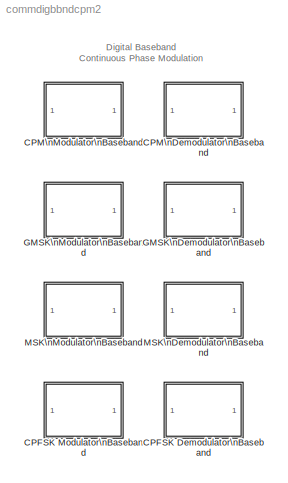
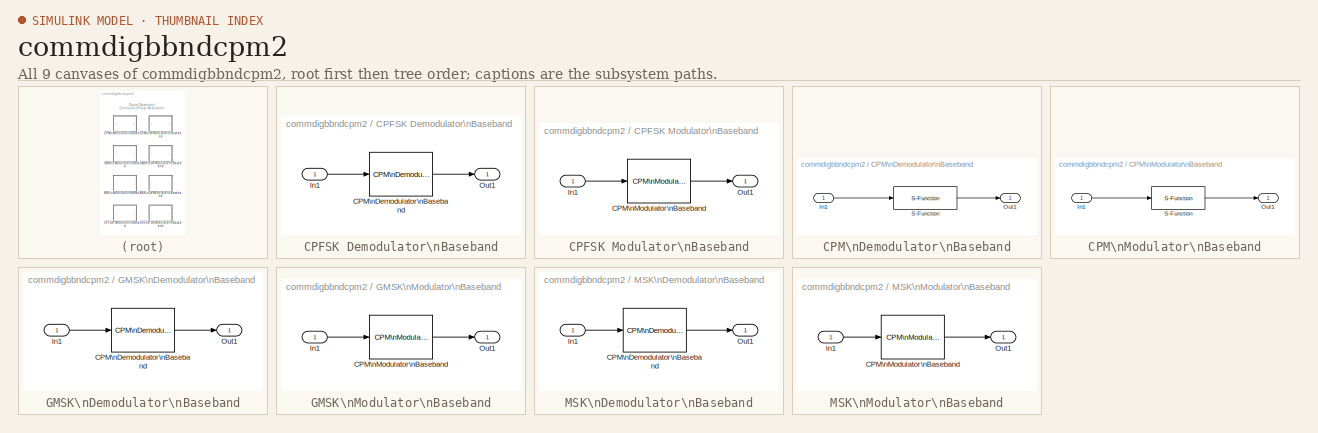
[diagram: thumbnail index - all 9 canvases of the model, root first then tree order]
MODEL commdigbbndcpm2
KIND library
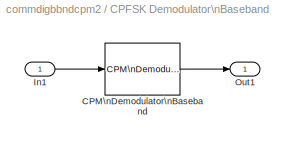
BLOCK [SubSystem] CPFSK Demodulator\nBaseband
  ErrorFcn = commblkcpfskdemod
  MaskCallbackString = |commblkcpfskdemod(gcb,'cbOutputType');|||||
  MaskDescription = Demodulate the CPFSK modulated input signal using the Viterbi algorithm. Traceback length is the number of trellis branches that the algorithm uses to construct each traceback path.\n\nFor sample-based input, the input must be a scalar. For frame-based input, the input must be a column vector.\n\nThe output can be either bits or integers. In case of bit output, the output width is an integer multi...<+376ch>
  MaskDisplay = plot(0,0,100,100,[5+1.5*[[0:.8:10] [10:1.6:20] [20:.8:30]] 50 50 50 50+15*[0 1 1 2 2 3]],[85+10*[sin([0:.8:10]*pi*2/5) sin([10:1.6:20]*pi/5) sin([20:.8:30]*pi*2/5)] 85 99 75 85+8*[1 1 -1 -1 1 1]]);\ntext(50,50,'CPFSK','horiz','center','verti','middle');
  MaskEnableString = on,on,off,on,on,on,on
  MaskHelp = helpview(commbhelp)
  MaskIconFrame = on
  MaskIconOpaque = on
  MaskIconRotate = port
  MaskIconUnits = autoscale
  MaskInitialization = [eStr,params]=commblkcpfskdemod(gcb, 'init');\nif(eStr.ecode==1)\n    error(eStr.emsg);\nelseif(eStr.ecode==2)\n    warning(eStr.emsg);\nend;\n
  MaskPromptString = M-ary number:|Output type:|Symbol set ordering:|Modulation index:|Phase offset (rad):|Samples per symbol:|Traceback length:
  MaskSelfModifiable = on
  MaskStyleString = edit,popup(Bit|Integer),popup(Binary|Gray),edit,edit,edit,edit
  MaskTabNameString = ,,,,,,
  MaskToolTipString = on,on,on,on,on,on,on
  MaskTunableValueString = on,on,on,on,on,on,on
  MaskType = CPFSK Demodulator Baseband
  MaskValueString = 4|Integer|Binary|.5|0|8|16
  MaskVarAliasString = ,,,,,,
  MaskVariables = Mnum=@1;outputType=@2;mappingType=@3;modIdx=@4;phaseOffset=@5;samplesPerSymbol=@6;traceBack=@7;
  MaskVisibilityString = on,on,on,on,on,on,on
  MinAlgLoopOccurrences = off
  Ports = [1, 1]
  PropExecContextAcrossSSBoundary = on
  RTWSystemCode = Auto
  TreatAsAtomicUnit = off
BLOCK [Reference] CPFSK Demodulator\nBaseband/CPM\nDemodulator\nBaseband  REF=commdigbbndcpm2/CPM\nDemodulator\nBaseband
  BT = .3
  Mnum = Mnum
  Ports = [1, 1]
  ShowPortLabels = on
  SourceBlock = commdigbbndcpm2/CPM\nDemodulator\nBaseband
  SourceType = CPM Demodulator Baseband
  mainLobePulseLength = 1
  mappingType = Binary
  modIdx = modIdx
  outputType = Integer
  phaseOffset = phaseOffset
  preHistory = 1
  pulseLength = 1
  pulseShape = Rectangular
  rollOff = 0.2
  samplesPerSymbol = samplesPerSymbol
  traceBack = traceBack
BLOCK [Inport] CPFSK Demodulator\nBaseband/In1
  IconDisplay = Port number
  LatchInput = off
BLOCK [Outport] CPFSK Demodulator\nBaseband/Out1
  BusOutputAsStruct = off
  IconDisplay = Port number
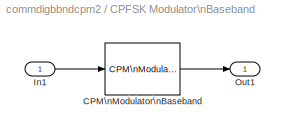
BLOCK [SubSystem] CPFSK Modulator\nBaseband
  ErrorFcn = commblkcpfskmod
  MaskCallbackString = |commblkcpfskmod(gcb,'cbInputType');||||
  MaskDescription = Modulate the input signal using the continuous phase frequency shift keying method.\n\nThe input can be either bits or integers. In case of sample-based bit input, the input width must equal the number of bits per symbol. In case of frame-based bit input, the input width must be an integer multiple of the number of bits per symbol. The bits can be either binary-mapped or Gray-mapped into symbols.\...<+392ch>
  MaskDisplay = plot(0,0,100,100,[5+15*[0 1 1 2 2 3] 50 50 50 50+1.5*[[0:.8:10] [10:1.6:20] [20:.8:30]]],[85+8*[1 1 -1 -1 1 1] 85 99 75 85+10*[sin([0:.8:10]*pi*2/5) sin([10:1.6:20]*pi/5) sin([20:.8:30]*pi*2/5)]]);\ntext(50,50,'CPFSK','horiz','center','verti','middle');
  MaskEnableString = on,on,off,on,on,on
  MaskHelp = helpview(commbhelp)
  MaskIconFrame = on
  MaskIconOpaque = on
  MaskIconRotate = port
  MaskIconUnits = autoscale
  MaskInitialization = [eStr,params]=commblkcpfskmod(gcb, 'init');\nif(eStr.ecode==1)\n    error(eStr.emsg);\nelseif(eStr.ecode==2)\n    warning(eStr.emsg);\nend;\n
  MaskPromptString = M-ary number:|Input type:|Symbol set ordering:|Modulation index:|Phase offset (rad):|Samples per symbol:
  MaskSelfModifiable = on
  MaskStyleString = edit,popup(Bit|Integer),popup(Binary|Gray),edit,edit,edit
  MaskTabNameString = ,,,,,
  MaskToolTipString = on,on,on,on,on,on
  MaskTunableValueString = on,on,on,on,on,on
  MaskType = CPFSK Modulator Baseband
  MaskValueString = 4|Integer|Binary|.5|0|8
  MaskVarAliasString = ,,,,,
  MaskVariables = Mnum=@1;inputType=@2;mappingType=@3;modIdx=@4;phaseOffset=@5;samplesPerSymbol=@6;
  MaskVisibilityString = on,on,on,on,on,on
  MinAlgLoopOccurrences = off
  Ports = [1, 1]
  PropExecContextAcrossSSBoundary = on
  RTWSystemCode = Auto
  TreatAsAtomicUnit = off
BLOCK [Reference] CPFSK Modulator\nBaseband/CPM\nModulator\nBaseband  REF=commdigbbndcpm2/CPM\nModulator\nBaseband
  BT = 0.3
  Mnum = Mnum
  Ports = [1, 1]
  ShowPortLabels = on
  SourceBlock = commdigbbndcpm2/CPM\nModulator\nBaseband
  SourceType = CPM Modulator Baseband
  inputType = Integer
  mainLobePulseLength = 0.2
  mappingType = Binary
  modIdx = modIdx
  phaseOffset = 0
  preHistory = 1
  pulseLength = 1
  pulseShape = Rectangular
  rollOff = 0.2
  samplesPerSymbol = samplesPerSymbol
BLOCK [Inport] CPFSK Modulator\nBaseband/In1
  IconDisplay = Port number
  LatchInput = off
BLOCK [Outport] CPFSK Modulator\nBaseband/Out1
  BusOutputAsStruct = off
  IconDisplay = Port number
BLOCK [SubSystem] CPM\nDemodulator\nBaseband
  ErrorFcn = commblkcpmdemod
  MaskCallbackString = |commblkcpmdemod(gcb,'cbOutputType');|||commblkcpmdemod(gcb,'cbPulseShape');||||||||
  MaskDescription = Demodulate the CPM modulated input signal using the Viterbi algorithm. Traceback length is the number of trellis branches that the algorithm uses to construct each traceback path.\n\nFor sample-based input, the input must be a scalar. For frame-based input, the input must be a column vector.\n\nThe output can be either bits or integers. In case of bit output, the output width is an integer multipl...<+374ch>
  MaskDisplay = plot(0,0,100,100,[5+1.5*[[0:.8:10] [10:1.6:20] [20:.8:30]] 50 50 50 50+15*[0 1 1 2 2 3]],[85+10*[sin([0:.8:10]*pi*2/5) sin([10:1.6:20]*pi/5) sin([20:.8:30]*pi*2/5)] 85 99 75 85+8*[1 1 -1 -1 1 1]]);\ntext(50,50,'CPM','horiz','center','verti','middle');
  MaskEnableString = on,on,off,on,on,on,on,on,on,on,on,on,on
  MaskHelp = helpview(commbhelp)
  MaskIconFrame = on
  MaskIconOpaque = on
  MaskIconRotate = port
  MaskIconUnits = autoscale
  MaskInitialization = [eStr,params]=commblkcpmdemod(gcb, 'init');\nif(eStr.ecode==1)\n    error(eStr.emsg);\nelseif(eStr.ecode==2)\n    warning(eStr.emsg);\nend;\n
  MaskPromptString = M-ary number:|Output type:|Symbol set ordering:|Modulation index:|Frequency pulse shape:|BT product:|Main lobe pulse duration (symbol intervals):|Rolloff:|Pulse length (symbol intervals):|Symbol prehistory:|Phase offset (rad):|Samples per symbol:|Traceback length:
  MaskSelfModifiable = on
  MaskStyleString = edit,popup(Bit|Integer),popup(Binary|Gray),edit,popup(Rectangular|Raised Cosine|Spectral Raised Cosine|Gaussian|Tamed FM),edit,edit,edit,edit,edit,edit,edit,edit
  MaskTabNameString = ,,,,,,,,,,,,
  MaskToolTipString = on,on,on,on,on,on,on,on,on,on,on,on,on
  MaskTunableValueString = on,on,on,on,on,on,on,on,on,on,on,on,on
  MaskType = CPM Demodulator Baseband
  MaskValueString = 4|Integer|Binary|0.5|Rectangular|0.3|1|0.2|1|1|0|8|16
  MaskVarAliasString = ,,,,,,,,,,,,
  MaskVariables = Mnum=@1;outputType=@2;mappingType=@3;modIdx=@4;pulseShape=@5;BT=@6;mainLobePulseLength=@7;rollOff=@8;pulseLength=@9;preHistory=@10;phaseOffset=@11;samplesPerSymbol=@12;traceBack=@13;
  MaskVisibilityString = on,on,on,on,on,off,off,off,on,on,on,on,on
  MinAlgLoopOccurrences = off
  Ports = [1, 1]
  PropExecContextAcrossSSBoundary = on
  RTWSystemCode = Auto
  TreatAsAtomicUnit = off
BLOCK [Inport] CPM\nDemodulator\nBaseband/In1
  IconDisplay = Port number
  LatchInput = off
BLOCK [Outport] CPM\nDemodulator\nBaseband/Out1
  BusOutputAsStruct = off
  IconDisplay = Port number
BLOCK [S-Function] CPM\nDemodulator\nBaseband/S-Function
  FunctionName = scomcpmdemod
  MaskIconFrame = on
  MaskIconOpaque = on
  MaskIconRotate = none
  MaskIconUnits = autoscale
  Parameters = Mnum,outputType,mappingType,modIdx,pulseShape,BT,mainLobePulseLength,rollOff,pulseLength,phaseOffset,samplesPerSymbol, params.gMod,preHistory,0,traceBack,params.m,params.p
  Ports = [1, 1]
  SFunctionModules = buff cpmmodulation trellisdecode phasetrellis
BLOCK [SubSystem] CPM\nModulator\nBaseband
  ErrorFcn = commblkcpmmod
  MaskCallbackString = |commblkcpmmod(gcb,'cbInputType');|||commblkcpmmod(gcb,'cbPulseShape');|||||||
  MaskDescription = Output the complex envelope representation of the selected continuous phase modulation.\n\nThe input can be either bits or integers. In case of sample-based bit input, the input width must equal the number of bits per symbol. In case of frame-based bit input, the input width must be an integer multiple of the number of bits per symbol. The bits can be either binary-mapped or Gray-mapped into symbo...<+494ch>
  MaskDisplay = plot(0,0,100,100,[5+15*[0 1 1 2 2 3] 50 50 50 50+1.5*[[0:.8:10] [10:1.6:20] [20:.8:30]]],[85+8*[1 1 -1 -1 1 1] 85 99 75 85+10*[sin([0:.8:10]*pi*2/5) sin([10:1.6:20]*pi/5) sin([20:.8:30]*pi*2/5)]]);\ntext(50,50,'CPM','horiz','center','verti','middle');
  MaskEnableString = on,on,off,on,on,on,on,on,on,on,on,on
  MaskHelp = helpview(commbhelp)
  MaskIconFrame = on
  MaskIconOpaque = on
  MaskIconRotate = port
  MaskIconUnits = autoscale
  MaskInitialization = [eStr,params]=commblkcpmmod(gcb, 'init');\nif(eStr.ecode==1)\n    error(eStr.emsg);\nelseif(eStr.ecode==2)\n    warning(eStr.emsg);\nend;\n
  MaskPromptString = M-ary number:|Input type:|Symbol set ordering:|Modulation index:|Frequency pulse shape:|BT product:|Main lobe pulse duration (symbol intervals):|Rolloff:|Pulse length (symbol intervals):|Symbol prehistory:|Phase offset (rad):|Samples per symbol:
  MaskSelfModifiable = on
  MaskStyleString = edit,popup(Bit|Integer),popup(Binary|Gray),edit,popup(Rectangular|Raised Cosine|Spectral Raised Cosine|Gaussian|Tamed FM),edit,edit,edit,edit,edit,edit,edit
  MaskTabNameString = ,,,,,,,,,,,
  MaskToolTipString = on,on,on,on,on,on,on,on,on,on,on,on
  MaskTunableValueString = on,on,on,on,on,on,on,on,on,on,on,on
  MaskType = CPM Modulator Baseband
  MaskValueString = 4|Integer|Binary|0.5|Rectangular|0.3|1|0.2|1|1|0|8
  MaskVarAliasString = ,,,,,,,,,,,
  MaskVariables = Mnum=@1;inputType=@2;mappingType=@3;modIdx=@4;pulseShape=@5;BT=@6;mainLobePulseLength=@7;rollOff=@8;pulseLength=@9;preHistory=@10;phaseOffset=@11;samplesPerSymbol=@12;
  MaskVisibilityString = on,on,on,on,on,off,off,off,on,on,on,on
  MinAlgLoopOccurrences = off
  Ports = [1, 1]
  PropExecContextAcrossSSBoundary = on
  RTWSystemCode = Auto
  TreatAsAtomicUnit = off
BLOCK [Inport] CPM\nModulator\nBaseband/In1
  IconDisplay = Port number
  LatchInput = off
BLOCK [Outport] CPM\nModulator\nBaseband/Out1
  BusOutputAsStruct = off
  IconDisplay = Port number
BLOCK [S-Function] CPM\nModulator\nBaseband/S-Function
  FunctionName = scomcpmmod
  MaskIconFrame = on
  MaskIconOpaque = on
  MaskIconRotate = none
  MaskIconUnits = autoscale
  Parameters = Mnum,inputType,mappingType,modIdx,pulseShape,BT,mainLobePulseLength,rollOff,pulseLength,phaseOffset,samplesPerSymbol, params.gMod,preHistory,0
  Ports = [1, 1]
  SFunctionModules = buff cpmmodulation
BLOCK [SubSystem] GMSK\nDemodulator\nBaseband
  ErrorFcn = commblkgmskdemod
  MaskCallbackString = ||||||
  MaskDescription = Demodulate the GMSK modulated input signal using the Viterbi algorithm. Traceback length is the number of trellis branches that the algorithm uses to construct each traceback path.\n\nFor sample-based input, the input must be a scalar. For frame-based input, the input must be a column vector.\n\nIn case of frame-based input, the width of the input frame represents the product of the number of symb...<+260ch>
  MaskDisplay = plot(0,0,100,100,[5+1.5*[[0:.8:10] [10:1.6:20] [20:.8:30]] 50 50 50 50+15*[0 1 1 2 2 3]],[85+10*[sin([0:.8:10]*pi*2/5) sin([10:1.6:20]*pi/5) sin([20:.8:30]*pi*2/5)] 85 99 75 85+8*[1 1 -1 -1 1 1]]);\ntext(50,50,'GMSK','horiz','center','verti','middle');
  MaskEnableString = on,on,on,on,on,on,on
  MaskHelp = helpview(commbhelp)
  MaskIconFrame = on
  MaskIconOpaque = on
  MaskIconRotate = port
  MaskIconUnits = autoscale
  MaskInitialization = [eStr,params]=commblkgmskdemod(gcb, 'init');\nif(eStr.ecode==1)\n    error(eStr.emsg);\nelseif(eStr.ecode==2)\n    warning(eStr.emsg);\nend;\n
  MaskPromptString = Output type:|BT product:|Pulse length (symbol intervals):|Symbol prehistory:|Phase offset (rad):|Samples per symbol:|Traceback length:
  MaskSelfModifiable = on
  MaskStyleString = popup(Bit|Integer),edit,edit,edit,edit,edit,edit
  MaskTabNameString = ,,,,,,
  MaskToolTipString = on,on,on,on,on,on,on
  MaskTunableValueString = on,on,on,on,on,on,on
  MaskType = GMSK Demodulator Baseband
  MaskValueString = Integer|.3|4|1|0|8|16
  MaskVarAliasString = ,,,,,,
  MaskVariables = OutputType=@1;BT=@2;pulseLength=@3;preHistory=@4;phaseOffset=@5;samplesPerSymbol=@6;traceBack=@7;
  MaskVisibilityString = on,on,on,on,on,on,on
  MinAlgLoopOccurrences = off
  Ports = [1, 1]
  PropExecContextAcrossSSBoundary = on
  RTWSystemCode = Auto
  TreatAsAtomicUnit = off
BLOCK [Reference] GMSK\nDemodulator\nBaseband/CPM\nDemodulator\nBaseband  REF=commdigbbndcpm2/CPM\nDemodulator\nBaseband
  BT = BT
  Mnum = 2
  Ports = [1, 1]
  ShowPortLabels = on
  SourceBlock = commdigbbndcpm2/CPM\nDemodulator\nBaseband
  SourceType = CPM Demodulator Baseband
  mainLobePulseLength = 1
  mappingType = Binary
  modIdx = 0.5
  outputType = Integer
  phaseOffset = phaseOffset
  preHistory = preHistory
  pulseLength = pulseLength
  pulseShape = Gaussian
  rollOff = 0.2
  samplesPerSymbol = samplesPerSymbol
  traceBack = traceBack
BLOCK [Inport] GMSK\nDemodulator\nBaseband/In1
  IconDisplay = Port number
  LatchInput = off
BLOCK [Outport] GMSK\nDemodulator\nBaseband/Out1
  BusOutputAsStruct = off
  IconDisplay = Port number
BLOCK [SubSystem] GMSK\nModulator\nBaseband
  ErrorFcn = commblkgmskmod
  MaskCallbackString = |||||
  MaskDescription = Modulate the input signal using the Gaussian minimum shift keying method.\n\nFor sample-based input, the input must be a scalar. For frame-based input, the input must be a column vector.\n\nIn case of frame-based input, the width of the output frame equals the product of the number of symbols and the Samples per symbol value.\n\nIn case of sample-based input, the output sample time equals the symb...<+148ch>
  MaskDisplay = plot(0,0,100,100,[5+15*[0 1 1 2 2 3] 50 50 50 50+1.5*[[0:.8:10] [10:1.6:20] [20:.8:30]]],[85+8*[1 1 -1 -1 1 1] 85 99 75 85+10*[sin([0:.8:10]*pi*2/5) sin([10:1.6:20]*pi/5) sin([20:.8:30]*pi*2/5)]]);\ntext(50,50,'GMSK','horiz','center','verti','middle');
  MaskEnableString = on,on,on,on,on,on
  MaskHelp = helpview(commbhelp)
  MaskIconFrame = on
  MaskIconOpaque = on
  MaskIconRotate = port
  MaskIconUnits = autoscale
  MaskInitialization = [eStr,params]=commblkgmskmod(gcb, 'init');\nif(eStr.ecode==1)\n    error(eStr.emsg);\nelseif(eStr.ecode==2)\n    warning(eStr.emsg);\nend;\n
  MaskPromptString = Input type:|BT product:|Pulse length (symbol intervals):|Symbol prehistory:|Phase offset (rad):|Samples per symbol:
  MaskSelfModifiable = on
  MaskStyleString = popup(Bit|Integer),edit,edit,edit,edit,edit
  MaskTabNameString = ,,,,,
  MaskToolTipString = on,on,on,on,on,on
  MaskTunableValueString = on,on,on,on,on,on
  MaskType = GMSK Modulator Baseband
  MaskValueString = Integer|.3|4|1|0|8
  MaskVarAliasString = ,,,,,
  MaskVariables = inputType=@1;BT=@2;pulseLength=@3;preHistory=@4;phaseOffset=@5;samplesPerSymbol=@6;
  MaskVisibilityString = on,on,on,on,on,on
  MinAlgLoopOccurrences = off
  Ports = [1, 1]
  PropExecContextAcrossSSBoundary = on
  RTWSystemCode = Auto
  TreatAsAtomicUnit = off
BLOCK [Reference] GMSK\nModulator\nBaseband/CPM\nModulator\nBaseband  REF=commdigbbndcpm2/CPM\nModulator\nBaseband
  BT = BT
  Mnum = 2
  Ports = [1, 1]
  ShowPortLabels = on
  SourceBlock = commdigbbndcpm2/CPM\nModulator\nBaseband
  SourceType = CPM Modulator Baseband
  inputType = Integer
  mainLobePulseLength = 0.2
  mappingType = Binary
  modIdx = .5
  phaseOffset = phaseOffset
  preHistory = preHistory
  pulseLength = pulseLength
  pulseShape = Gaussian
  rollOff = 0.2
  samplesPerSymbol = samplesPerSymbol
BLOCK [Inport] GMSK\nModulator\nBaseband/In1
  IconDisplay = Port number
  LatchInput = off
BLOCK [Outport] GMSK\nModulator\nBaseband/Out1
  BusOutputAsStruct = off
  IconDisplay = Port number
BLOCK [SubSystem] MSK\nDemodulator\nBaseband
  ErrorFcn = commblkmskdemod
  MaskCallbackString = |||
  MaskDescription = Demodulate the MSK modulated input signal using the Viterbi algorithm. Traceback length is the number of trellis branches that the algorithm uses to construct each traceback path.\n\nFor sample-based input, the input must be a scalar. For frame-based input, the input must be a column vector.\n\nIn case of frame-based input, the width of the input frame represents the product of the number of symbo...<+161ch>
  MaskDisplay = plot(0,0,100,100,[5+1.5*[[0:.8:10] [10:1.6:20] [20:.8:30]] 50 50 50 50+15*[0 1 1 2 2 3]],[85+10*[sin([0:.8:10]*pi*2/5) sin([10:1.6:20]*pi/5) sin([20:.8:30]*pi*2/5)] 85 99 75 85+8*[1 1 -1 -1 1 1]]);\ntext(51,51,'MSK','horiz','center','verti','middle');\n
  MaskEnableString = on,on,on,on
  MaskHelp = helpview(commbhelp)
  MaskIconFrame = on
  MaskIconOpaque = on
  MaskIconRotate = port
  MaskIconUnits = autoscale
  MaskInitialization = [eStr,params]=commblkmskdemod(gcb, 'init');\nif(eStr.ecode==1)\n    error(eStr.emsg);\nelseif(eStr.ecode==2)\n    warning(eStr.emsg);\nend;\n
  MaskPromptString = Output type:|Phase offset (rad):|Samples per symbol:|Traceback length:
  MaskSelfModifiable = on
  MaskStyleString = popup(Bit|Integer),edit,edit,edit
  MaskTabNameString = ,,,
  MaskToolTipString = on,on,on,on
  MaskTunableValueString = on,on,on,on
  MaskType = MSK Demodulator Baseband
  MaskValueString = Integer|0|8|16
  MaskVarAliasString = ,,,
  MaskVariables = outputType=@1;phaseOffset=@2;samplesPerSymbol=@3;traceBack=@4;
  MaskVisibilityString = on,on,on,on
  MinAlgLoopOccurrences = off
  Ports = [1, 1]
  PropExecContextAcrossSSBoundary = on
  RTWSystemCode = Auto
  TreatAsAtomicUnit = off
BLOCK [Reference] MSK\nDemodulator\nBaseband/CPM\nDemodulator\nBaseband  REF=commdigbbndcpm2/CPM\nDemodulator\nBaseband
  BT = .3
  Mnum = 2
  Ports = [1, 1]
  ShowPortLabels = on
  SourceBlock = commdigbbndcpm2/CPM\nDemodulator\nBaseband
  SourceType = CPM Demodulator Baseband
  mainLobePulseLength = 1
  mappingType = Binary
  modIdx = 0.5
  outputType = Integer
  phaseOffset = phaseOffset
  preHistory = 1
  pulseLength = 1
  pulseShape = Rectangular
  rollOff = 0.2
  samplesPerSymbol = samplesPerSymbol
  traceBack = traceBack
BLOCK [Inport] MSK\nDemodulator\nBaseband/In1
  IconDisplay = Port number
  LatchInput = off
BLOCK [Outport] MSK\nDemodulator\nBaseband/Out1
  BusOutputAsStruct = off
  IconDisplay = Port number
BLOCK [SubSystem] MSK\nModulator\nBaseband
  ErrorFcn = commblkmskmod
  MaskCallbackString = ||
  MaskDescription = Modulate the input signal using the minimum shift keying method.\n\nFor sample-based input, the input must be a scalar. For frame-based input, the input must be a column vector.\n\nIn case of frame-based input, the width of the output frame equals the product of the number of symbols and the Samples per symbol value.\n\nIn case of sample-based input, the output sample time equals the symbol period...<+41ch>
  MaskDisplay = plot(0,0,100,100,[5+15*[0 1 1 2 2 3] 50 50 50 50+1.5*[[0:.8:10] [10:1.6:20] [20:.8:30]]],[85+8*[1 1 -1 -1 1 1] 85 99 75 85+10*[sin([0:.8:10]*pi*2/5) sin([10:1.6:20]*pi/5) sin([20:.8:30]*pi*2/5)]]);\ntext(51,51,'MSK','horiz','center','verti','middle');\n
  MaskEnableString = on,on,on
  MaskHelp = helpview(commbhelp)
  MaskIconFrame = on
  MaskIconOpaque = on
  MaskIconRotate = port
  MaskIconUnits = autoscale
  MaskInitialization = [eStr,params]=commblkmskmod(gcb, 'init');\nif(eStr.ecode==1)\n    error(eStr.emsg);\nelseif(eStr.ecode==2)\n    warning(eStr.emsg);\nend;\n
  MaskPromptString = Input type:|Phase offset (rad):|Samples per symbol:
  MaskSelfModifiable = on
  MaskStyleString = popup(Bit|Integer),edit,edit
  MaskTabNameString = ,,
  MaskToolTipString = on,on,on
  MaskTunableValueString = on,on,on
  MaskType = MSK Modulator Baseband
  MaskValueString = Integer|0|8
  MaskVarAliasString = ,,
  MaskVariables = inputType=@1;phaseOffset=@2;samplesPerSymbol=@3;
  MaskVisibilityString = on,on,on
  MinAlgLoopOccurrences = off
  Ports = [1, 1]
  PropExecContextAcrossSSBoundary = on
  RTWSystemCode = Auto
  TreatAsAtomicUnit = off
BLOCK [Reference] MSK\nModulator\nBaseband/CPM\nModulator\nBaseband  REF=commdigbbndcpm2/CPM\nModulator\nBaseband
  BT = 0.3
  Mnum = 2
  Ports = [1, 1]
  ShowPortLabels = on
  SourceBlock = commdigbbndcpm2/CPM\nModulator\nBaseband
  SourceType = CPM Modulator Baseband
  inputType = Integer
  mainLobePulseLength = 0.2
  mappingType = Binary
  modIdx = 0.5
  phaseOffset = phaseOffset
  preHistory = 1
  pulseLength = 1
  pulseShape = Rectangular
  rollOff = 0.2
  samplesPerSymbol = samplesPerSymbol
BLOCK [Inport] MSK\nModulator\nBaseband/In1
  IconDisplay = Port number
  LatchInput = off
BLOCK [Outport] MSK\nModulator\nBaseband/Out1
  BusOutputAsStruct = off
  IconDisplay = Port number
ANNOTATION (root): Digital Baseband\nContinuous Phase Modulation
LINE CPFSK Demodulator\nBaseband/CPM\nDemodulator\nBaseband:1 -> CPFSK Demodulator\nBaseband/Out1:1
LINE CPFSK Demodulator\nBaseband/In1:1 -> CPFSK Demodulator\nBaseband/CPM\nDemodulator\nBaseband:1
LINE CPFSK Modulator\nBaseband/CPM\nModulator\nBaseband:1 -> CPFSK Modulator\nBaseband/Out1:1
LINE CPFSK Modulator\nBaseband/In1:1 -> CPFSK Modulator\nBaseband/CPM\nModulator\nBaseband:1
LINE CPM\nDemodulator\nBaseband/In1:1 -> CPM\nDemodulator\nBaseband/S-Function:1
LINE CPM\nDemodulator\nBaseband/S-Function:1 -> CPM\nDemodulator\nBaseband/Out1:1
LINE CPM\nModulator\nBaseband/In1:1 -> CPM\nModulator\nBaseband/S-Function:1
LINE CPM\nModulator\nBaseband/S-Function:1 -> CPM\nModulator\nBaseband/Out1:1
LINE GMSK\nDemodulator\nBaseband/CPM\nDemodulator\nBaseband:1 -> GMSK\nDemodulator\nBaseband/Out1:1
LINE GMSK\nDemodulator\nBaseband/In1:1 -> GMSK\nDemodulator\nBaseband/CPM\nDemodulator\nBaseband:1
LINE GMSK\nModulator\nBaseband/CPM\nModulator\nBaseband:1 -> GMSK\nModulator\nBaseband/Out1:1
LINE GMSK\nModulator\nBaseband/In1:1 -> GMSK\nModulator\nBaseband/CPM\nModulator\nBaseband:1
LINE MSK\nDemodulator\nBaseband/CPM\nDemodulator\nBaseband:1 -> MSK\nDemodulator\nBaseband/Out1:1
LINE MSK\nDemodulator\nBaseband/In1:1 -> MSK\nDemodulator\nBaseband/CPM\nDemodulator\nBaseband:1
LINE MSK\nModulator\nBaseband/CPM\nModulator\nBaseband:1 -> MSK\nModulator\nBaseband/Out1:1
LINE MSK\nModulator\nBaseband/In1:1 -> MSK\nModulator\nBaseband/CPM\nModulator\nBaseband:1
